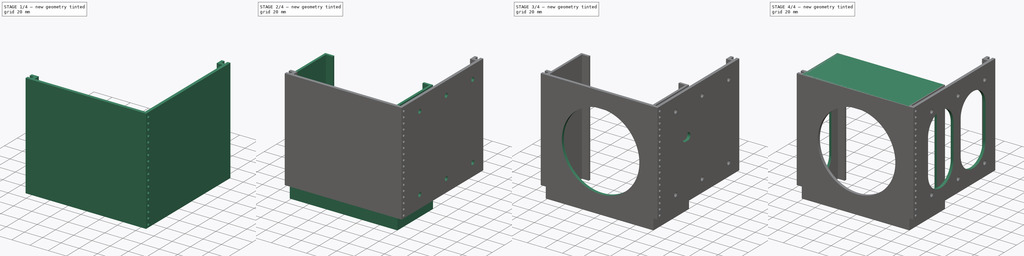
[diagram: build sequence overview — one tinted view per stage of 4, left to right]
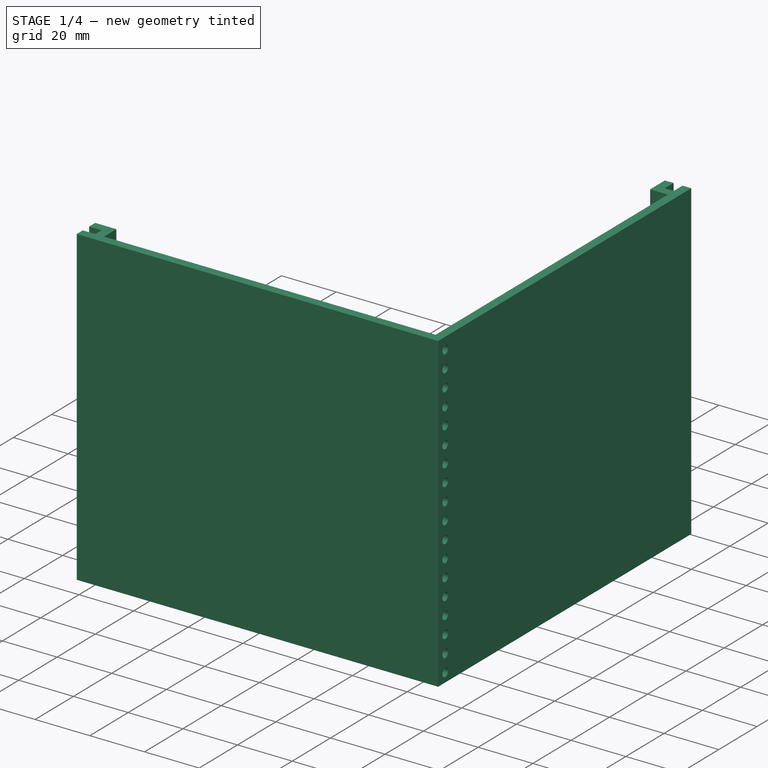
[diagram: stage 1 of 4 — iso view after this stage's code; geometry added in this stage tinted green]
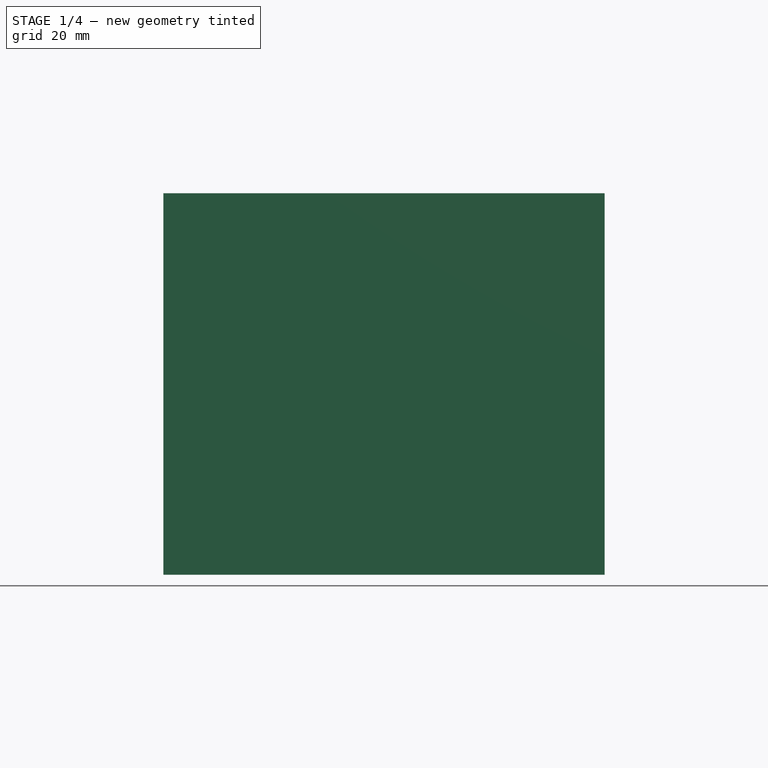
[diagram: stage 1 of 4 — front view after this stage's code; geometry added in this stage tinted green]
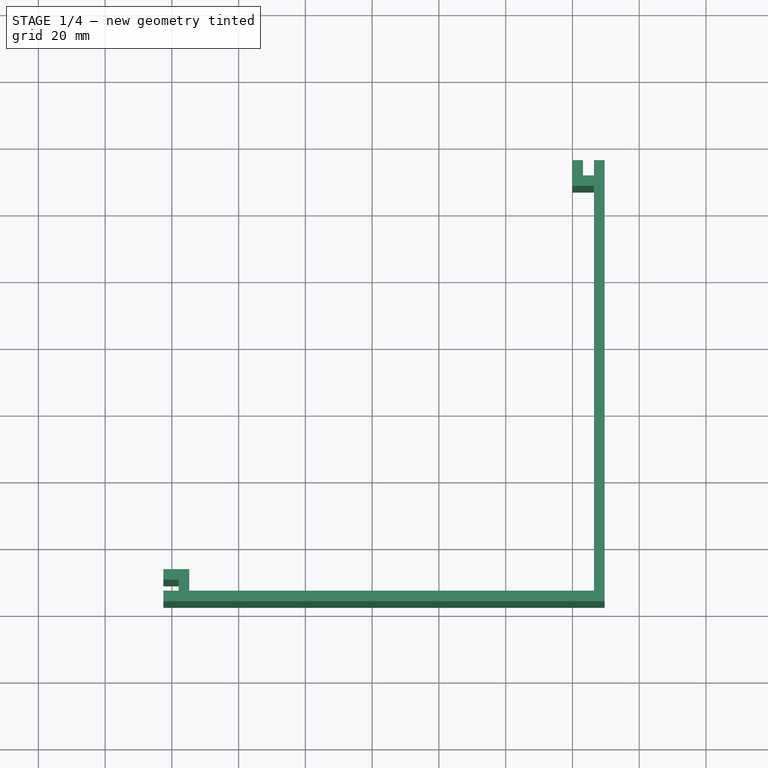
[diagram: stage 1 of 4 — top view after this stage's code; geometry added in this stage tinted green]
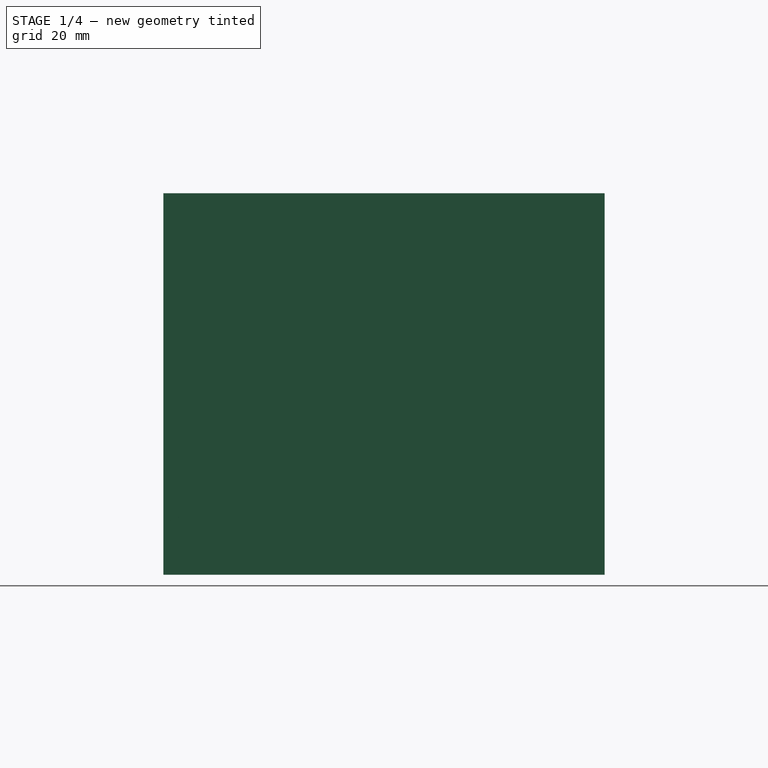
[diagram: stage 1 of 4 — right view after this stage's code; geometry added in this stage tinted green]
FCSTD DOCUMENT  (FreeCAD 0.16R6712 (Git))
Label: reworking contro
License: All rights reserved
LicenseURL: http://en.wikipedia.org/wiki/All_rights_reserved
objects: Sketcher::SketchObject×9, PartDesign::Pocket×6, PartDesign::Pad×3, PartDesign::LinearPattern×2
note: 29 computed .brp shape members not serialized (recipe doc carries the construction recipe); baked Part::Feature solids carry a one-line shape summary decoded from their .brp

FEATURE [Sketcher::SketchObject] Sketch
  sketch-geometry (18):
    g0: LineSegment StartX=-122.555 StartY=32.1333 StartZ=0 EndX=-122.555 EndY=28.9583 EndZ=0
    g1: LineSegment StartX=-122.555 StartY=28.9583 StartZ=0 EndX=-117.983 EndY=28.9583 EndZ=0
    g2: LineSegment StartX=-117.983 StartY=28.9583 StartZ=0 EndX=-117.983 EndY=25.6563 EndZ=0
    g3: LineSegment StartX=-117.983 StartY=25.6563 StartZ=0 EndX=-122.555 EndY=25.6563 EndZ=0
    g4: LineSegment StartX=-122.555 StartY=25.6563 StartZ=0 EndX=-122.555 EndY=22.4813 EndZ=0
    g5: LineSegment StartX=-122.555 StartY=22.4813 StartZ=0 EndX=9.652 EndY=22.4813 EndZ=0
    g6: LineSegment StartX=9.652 StartY=22.4813 StartZ=0 EndX=9.652 EndY=154.688 EndZ=0
    g7: LineSegment StartX=9.652 StartY=154.688 StartZ=0 EndX=6.477 EndY=154.688 EndZ=0
    g8: LineSegment StartX=6.477 StartY=154.688 StartZ=0 EndX=6.477 EndY=150.116 EndZ=0
    g9: LineSegment StartX=6.477 StartY=150.116 StartZ=0 EndX=3.175 EndY=150.116 EndZ=0
    g10: LineSegment StartX=3.175 StartY=150.116 StartZ=0 EndX=3.175 EndY=154.688 EndZ=0
    g11: LineSegment StartX=3.175 StartY=154.688 StartZ=0 EndX=0 EndY=154.688 EndZ=0
    g12: LineSegment StartX=0 StartY=154.688 StartZ=0 EndX=0 EndY=146.941 EndZ=0
    g13: LineSegment StartX=0 StartY=146.941 StartZ=0 EndX=6.477 EndY=146.941 EndZ=0
    g14: LineSegment StartX=6.477 StartY=146.941 StartZ=0 EndX=6.477 EndY=25.6563 EndZ=0
    g15: LineSegment StartX=6.477 StartY=25.6563 StartZ=0 EndX=-114.808 EndY=25.6563 EndZ=0
    g16: LineSegment StartX=-114.808 StartY=25.6563 StartZ=0 EndX=-114.808 EndY=32.1333 EndZ=0
    g17: LineSegment StartX=-114.808 StartY=32.1333 StartZ=0 EndX=-122.555 EndY=32.1333 EndZ=0
  constraints (53):
    c: Coincident(g0,g1)
    c: Coincident(g1,g2)
    c: Coincident(g2,g3)
    c: Coincident(g3,g4)
    c: Coincident(g4,g5)
    c: Horizontal(g5)
    c: Coincident(g5,g6)
    c: Vertical(g6)
    c: Coincident(g6,g7)
    c: Coincident(g7,g8)
    c: Vertical(g8)
    c: Coincident(g8,g9)
    c: Coincident(g9,g10)
    c: Coincident(g10,g11)
    c: PointOnObject(g11,g-2)
    c: Coincident(g11,g12)
    c: PointOnObject(g12,g-2)
    c: Coincident(g12,g13)
    c: Coincident(g13,g14)
    c: Vertical(g14)
    c: Coincident(g14,g15)
    c: Horizontal(g15)
    c: Coincident(g15,g16)
    c: Vertical(g16)
    c: Coincident(g16,g17)
    c: Coincident(g17,g0)
    c: Vertical(g2)
    c: Vertical(g0)
    c: Vertical(g4)
    c: Vertical(g10)
    c: Horizontal(g1)
    c: Horizontal(g17)
    c: Horizontal(g3)
    c: Horizontal(g13)
    c: DistanceY(g2,g2) = 3.302
    c: DistanceY(g0,g0) = 3.175
    c: DistanceY(g4,g4) = 3.175
    c: DistanceY(g4,g15) = 3.175
    c: DistanceX(g1,g1) = 4.572
    c: DistanceX(g2,g15) = 3.175
    c: DistanceX(g3,g2) = 4.572
    c: DistanceX(g2,g14) = 124.46
    c: DistanceX(g14,g5) = 3.175
    c: Horizontal(g7)
    c: Horizontal(g11)
    c: Horizontal(g9)
    c: DistanceX(g7,g7) = 3.175
    c: DistanceX(g11,g11) = 3.175
    c: DistanceX(g9,g9) = 3.302
    c: DistanceY(g8,g7) = 4.572
    c: DistanceY(g10,g10) = 4.572
    c: DistanceY(g13,g8) = 3.175
    c: DistanceY(g14,g8) = 124.46
FEATURE [PartDesign::Pad] Pad
  Length = 114.3
  Length2 = 100
  Sketch = -> Sketch
  Type = 0
FEATURE [Sketcher::SketchObject] Sketch002
  Placement = pos=(9.652,0,0) rot=(0.57735,0.57735,0.57735;2.0944rad)
  Support = -> Pad [Face7]
  sketch-geometry (1):
    g0: Circle CenterX=26.1806 CenterY=110.003 CenterZ=0 NormalX=0 NormalY=0 NormalZ=1 Radius=1.49513
FEATURE [PartDesign::Pocket] Pocket
  Length = 3.175
  Sketch = -> Sketch002
  Type = 0
FEATURE [PartDesign::LinearPattern] LinearPattern
  Direction = -> Sketch002 [V_Axis]
  Length = 106.68
  Occurrences = 18
  Originals = -> [Pocket]
  Reversed = true
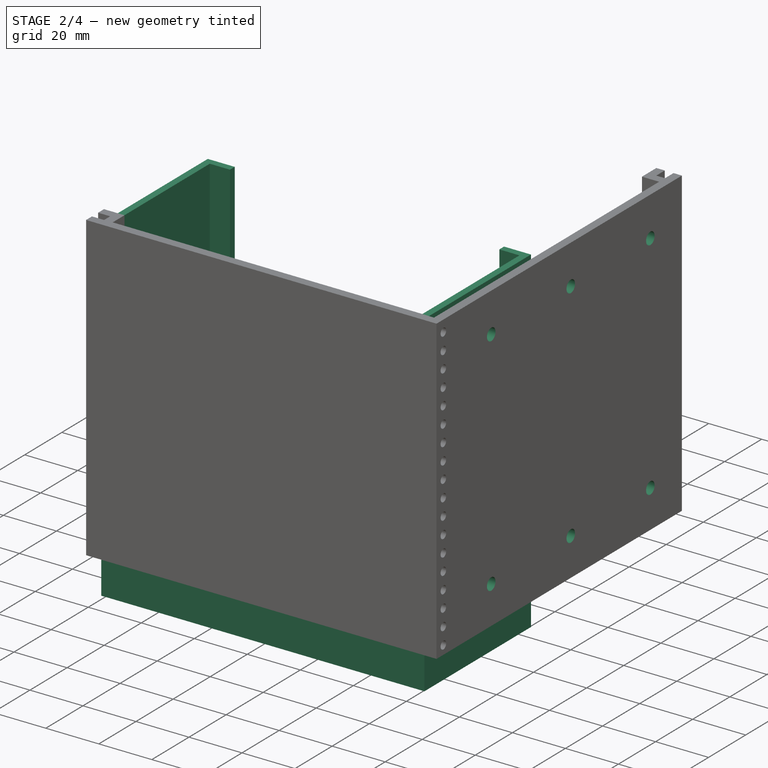
[diagram: stage 2 of 4 — iso view after this stage's code; geometry added in this stage tinted green]
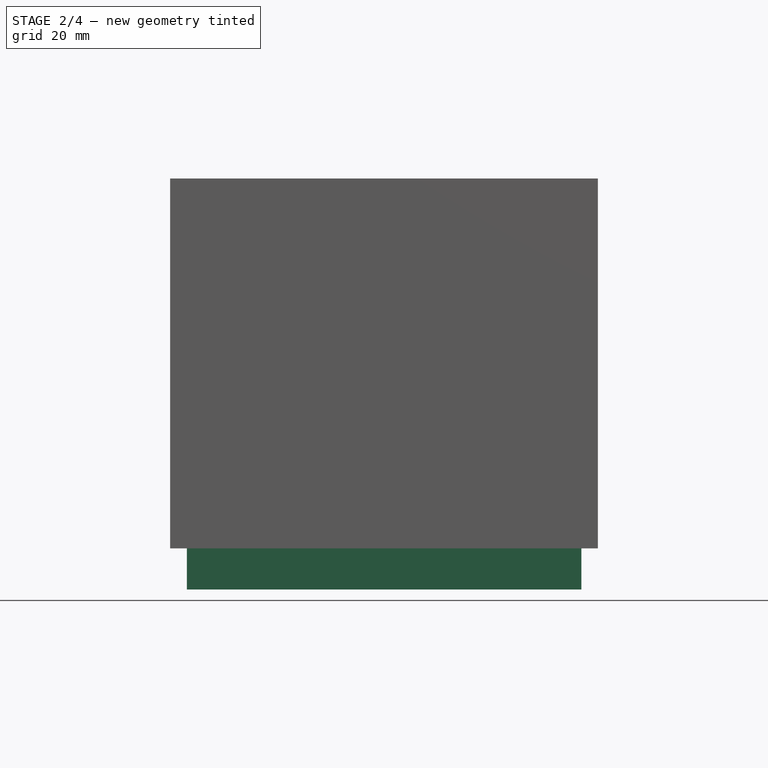
[diagram: stage 2 of 4 — front view after this stage's code; geometry added in this stage tinted green]
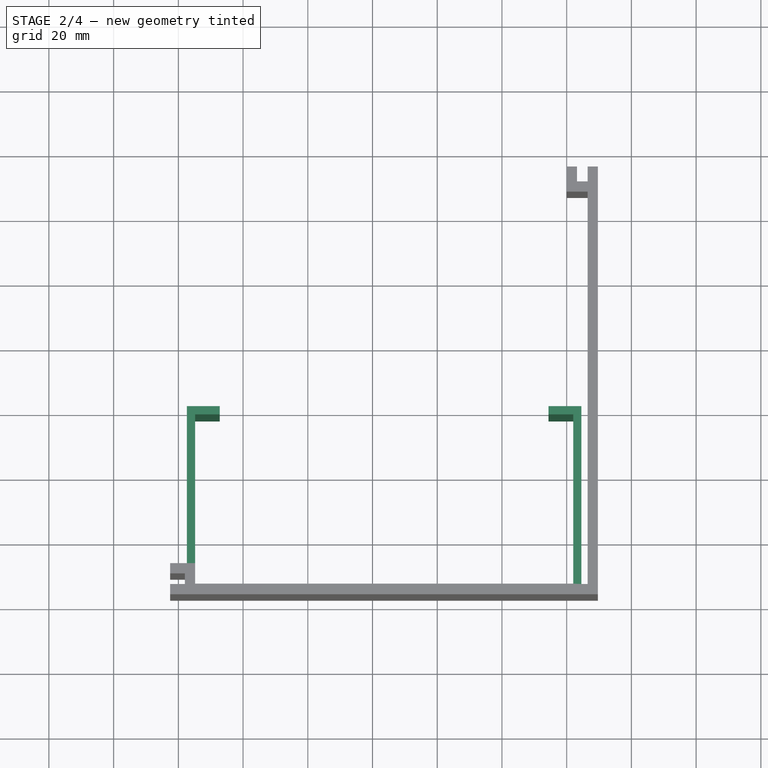
[diagram: stage 2 of 4 — top view after this stage's code; geometry added in this stage tinted green]
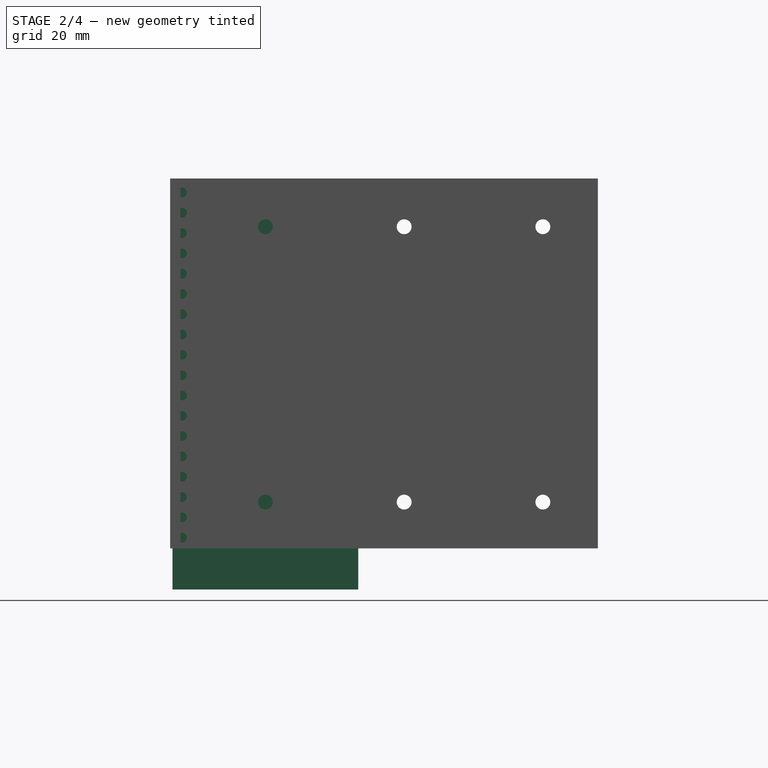
[diagram: stage 2 of 4 — right view after this stage's code; geometry added in this stage tinted green]
FEATURE [Sketcher::SketchObject] Sketch003
  Placement = pos=(6.477,0,0) rot=(0.57735,-0.57735,-0.57735;2.0944rad)
  Support = -> LinearPattern [Face19]
  sketch-geometry (2):
    g0: Circle CenterX=-137.674 CenterY=99.3967 CenterZ=0 NormalX=0 NormalY=0 NormalZ=1 Radius=2.29514
    g1: Circle CenterX=-137.674 CenterY=14.3067 CenterZ=0 NormalX=0 NormalY=0 NormalZ=1 Radius=2.29514
  constraints (4):
    c: DistanceX(g1,g0) = 0
    c: DistanceY(g1,g0) = 85.09
    c: Radius(g0) = 2.29514
    c: Equal(g0,g1)
FEATURE [PartDesign::Pocket] Pocket001
  Length = 4.99999
  Sketch = -> Sketch003
  Type = 0
FEATURE [PartDesign::LinearPattern] LinearPattern001
  Direction = -> Sketch003 [H_Axis]
  Length = 85.725
  Occurrences = 3
  Originals = -> [Pocket001]
FEATURE [Sketcher::SketchObject] Sketch006
  Placement = pos=(0,0,114.3) rot=(0,0,1;0rad)
  Support = -> LinearPattern001 [Face5]
  sketch-geometry (12):
    g0: LineSegment StartX=-114.823 StartY=25.7738 StartZ=0 EndX=2.01728 EndY=25.7738 EndZ=0
    g1: LineSegment StartX=2.01728 StartY=25.7738 StartZ=0 EndX=2.01728 EndY=78.0978 EndZ=0
    g2: LineSegment StartX=2.01728 StartY=78.0978 StartZ=0 EndX=-5.60272 EndY=78.0978 EndZ=0
    g3: LineSegment StartX=-5.60272 StartY=78.0978 StartZ=0 EndX=-5.60272 EndY=80.6378 EndZ=0
    g4: LineSegment StartX=-5.60272 StartY=80.6378 StartZ=0 EndX=4.55728 EndY=80.6378 EndZ=0
    g5: LineSegment StartX=4.55728 StartY=80.6378 StartZ=0 EndX=4.55728 EndY=23.2338 EndZ=0
    g6: LineSegment StartX=4.55728 StartY=23.2338 StartZ=0 EndX=-117.363 EndY=23.2338 EndZ=0
    g7: LineSegment StartX=-117.363 StartY=23.2338 StartZ=0 EndX=-117.363 EndY=80.6378 EndZ=0
    g8: LineSegment StartX=-117.363 StartY=80.6378 StartZ=0 EndX=-107.203 EndY=80.6378 EndZ=0
    g9: LineSegment StartX=-107.203 StartY=80.6378 StartZ=0 EndX=-107.203 EndY=78.0978 EndZ=0
    g10: LineSegment StartX=-107.203 StartY=78.0978 StartZ=0 EndX=-114.823 EndY=78.0978 EndZ=0
    g11: LineSegment StartX=-114.823 StartY=78.0978 StartZ=0 EndX=-114.823 EndY=25.7738 EndZ=0
  constraints (34):
    c: Horizontal(g0)
    c: Coincident(g0,g1)
    c: Vertical(g1)
    c: Coincident(g1,g2)
    c: Coincident(g2,g3)
    c: Coincident(g3,g4)
    c: Horizontal(g4)
    c: Coincident(g4,g5)
    c: Vertical(g5)
    c: Coincident(g5,g6)
    c: Horizontal(g6)
    c: Coincident(g6,g7)
    c: Vertical(g7)
    c: Coincident(g7,g8)
    c: Horizontal(g8)
    c: Coincident(g8,g9)
    c: Vertical(g9)
    c: Coincident(g9,g10)
    c: Horizontal(g10)
    c: Coincident(g10,g11)
    c: Coincident(g11,g0)
    c: Vertical(g11)
    c: DistanceX(g0,g0) = 116.84
    c: DistanceX(g7,g10) = 2.54
    c: DistanceX(g0,g5) = 2.54
    c: Horizontal(g2)
    c: Vertical(g3)
    c: DistanceX(g2,g2) = 7.62
    c: DistanceX(g10,g10) = 7.62
    c: DistanceY(g9,g9) = 2.54
    c: DistanceY(g3,g3) = 2.54
    c: DistanceY(g6,g0) = 2.54
    c: DistanceY(g11,g11) = 52.324
    c: Equal(g11,g1)
FEATURE [PartDesign::Pad] Pad001
  Length = 127
  Length2 = 100
  Reversed = true
  Sketch = -> Sketch006
  Type = 0
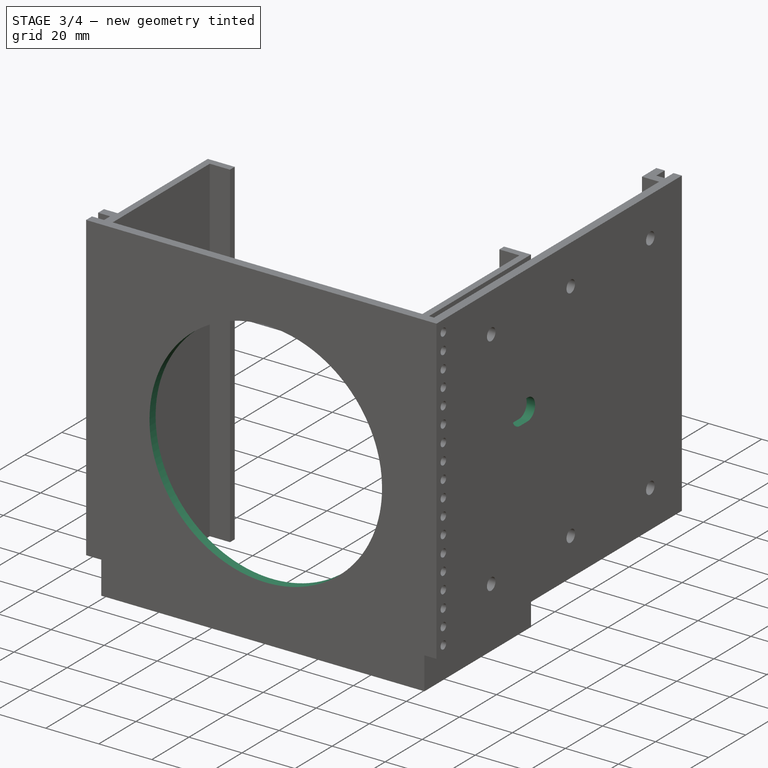
[diagram: stage 3 of 4 — iso view after this stage's code; geometry added in this stage tinted green]
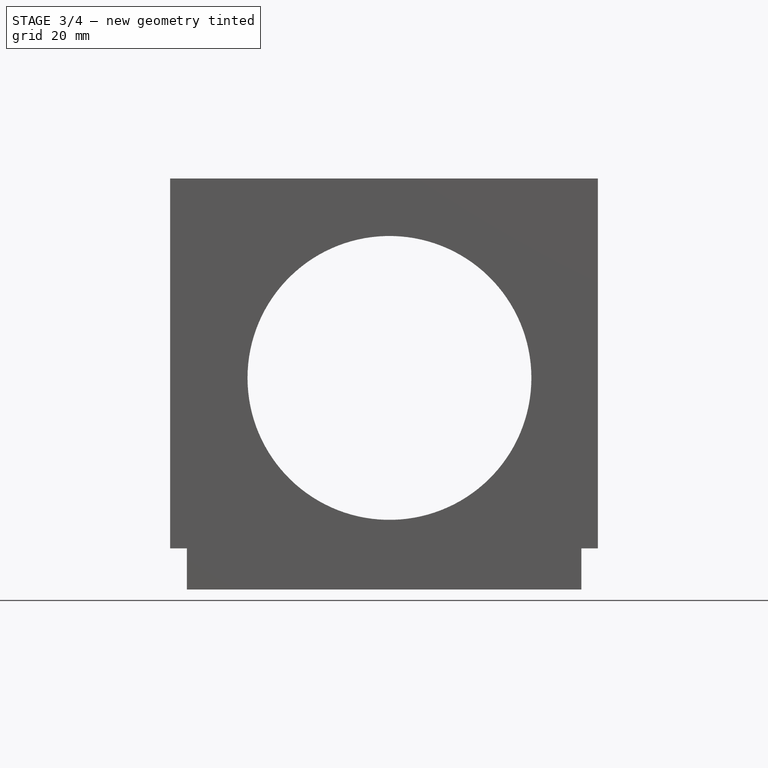
[diagram: stage 3 of 4 — front view after this stage's code; geometry added in this stage tinted green]
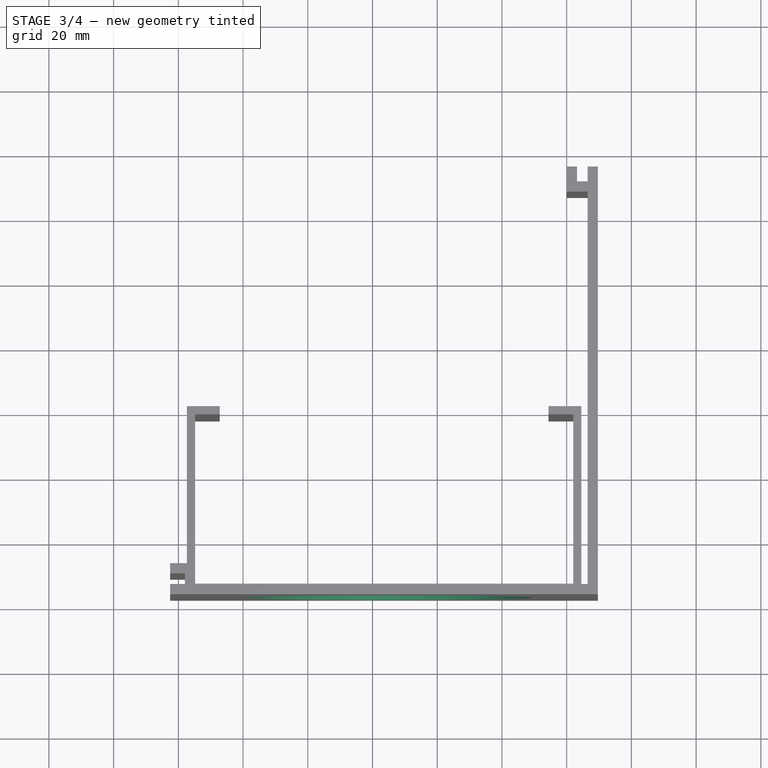
[diagram: stage 3 of 4 — top view after this stage's code; geometry added in this stage tinted green]
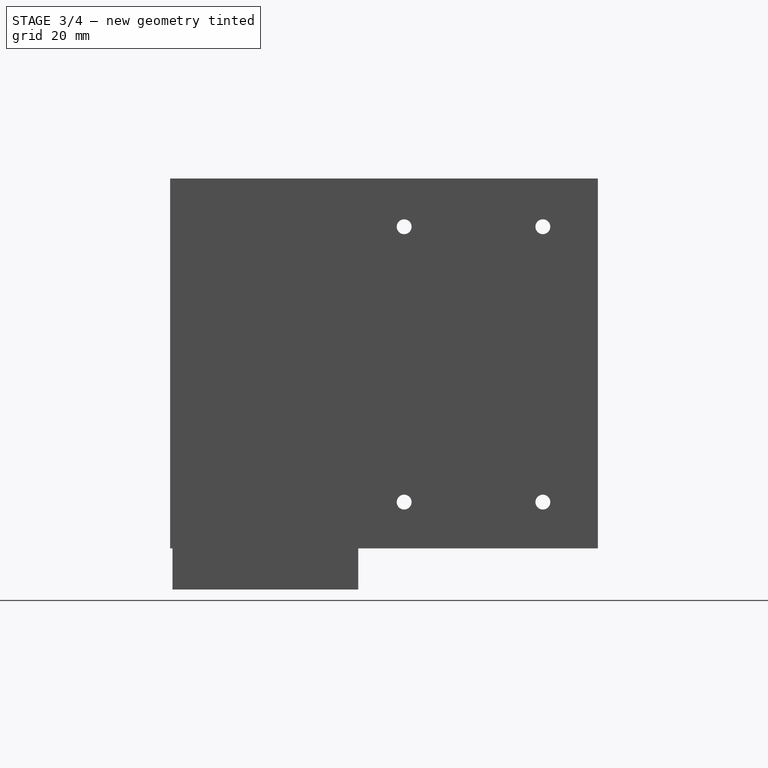
[diagram: stage 3 of 4 — right view after this stage's code; geometry added in this stage tinted green]
FEATURE [Sketcher::SketchObject] Sketch009
  Placement = pos=(0,25.7738,0) rot=(0,0.707107,0.707107;3.14159rad)
  Support = -> Pad001 [Face2]
  sketch-geometry (1):
    g0: Circle CenterX=54.7674 CenterY=52.6804 CenterZ=0 NormalX=0 NormalY=0 NormalZ=1 Radius=43.8607
FEATURE [PartDesign::Pocket] Pocket002
  Length = 4.99999
  Sketch = -> Sketch009
  Type = 0
FEATURE [Sketcher::SketchObject] Sketch010
  Placement = pos=(9.652,0,0) rot=(0.57735,0.57735,0.57735;2.0944rad)
  Support = -> Pocket002 [Face28]
  sketch-geometry (4):
    g0: ArcOfCircle CenterX=71.5185 CenterY=66.3249 CenterZ=0 NormalX=0 NormalY=0 NormalZ=1 Radius=4.06776 StartAngle=4.71239 EndAngle=7.85398
    g1: ArcOfCircle CenterX=67.4376 CenterY=66.3249 CenterZ=0 NormalX=0 NormalY=0 NormalZ=1 Radius=4.06776 StartAngle=1.5708 EndAngle=4.71239
    g2: LineSegment StartX=71.5185 StartY=70.3926 StartZ=0 EndX=67.4376 EndY=70.3926 EndZ=0
    g3: LineSegment StartX=71.5185 StartY=62.2571 StartZ=0 EndX=67.4376 EndY=62.2571 EndZ=0
  constraints (6):
    c: Tangent(g0,g3) = 1.5708
    c: Tangent(g0,g2) = -1.5708
    c: Tangent(g2,g1) = -1.5708
    c: Tangent(g3,g1) = 1.5708
    c: Horizontal(g2)
    c: Equal(g0,g1)
FEATURE [PartDesign::Pocket] Pocket003
  Length = 4.99999
  Sketch = -> Sketch010
  Type = 0
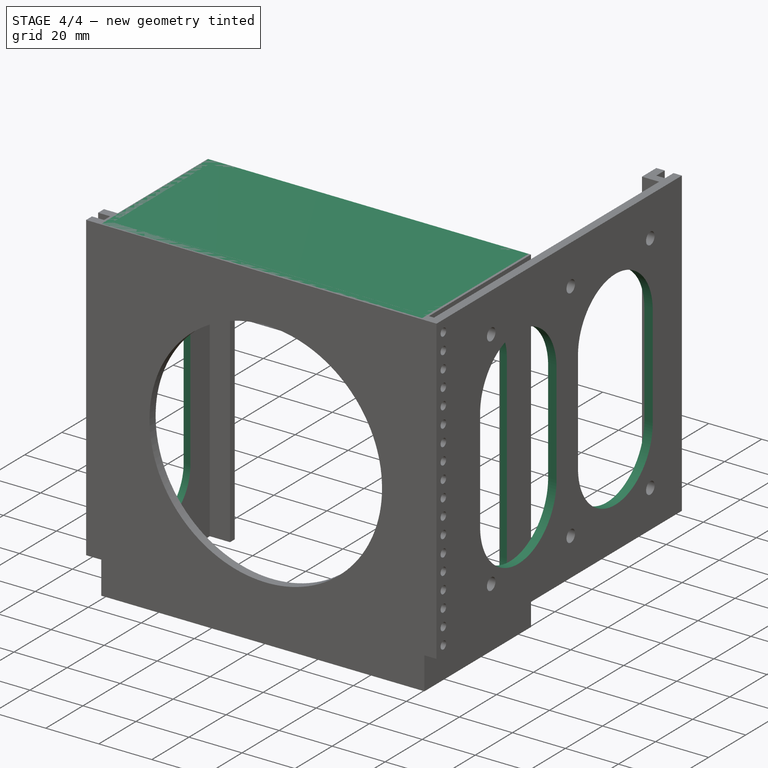
[diagram: stage 4 of 4 — iso view after this stage's code; geometry added in this stage tinted green]
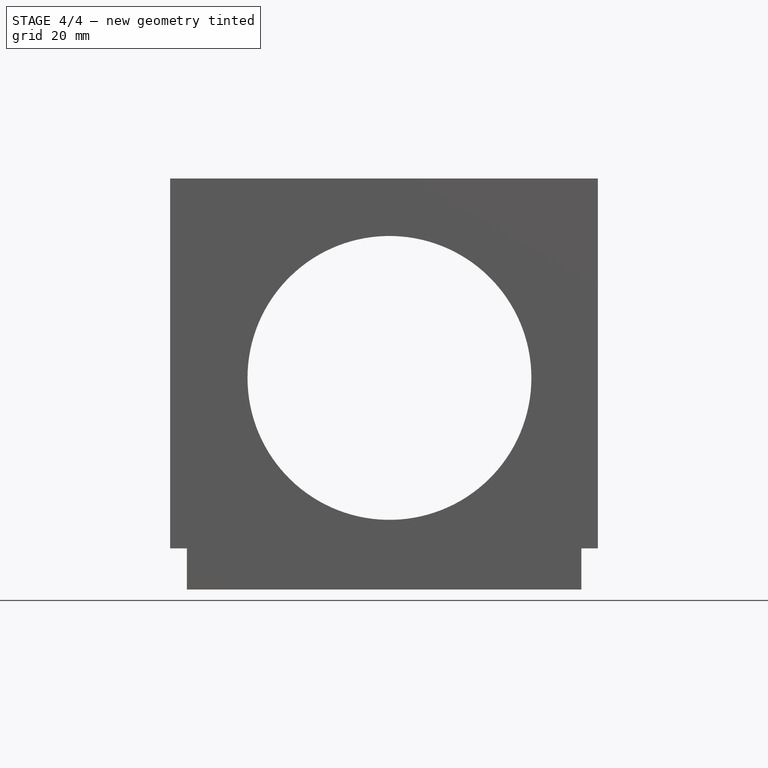
[diagram: stage 4 of 4 — front view after this stage's code; geometry added in this stage tinted green]
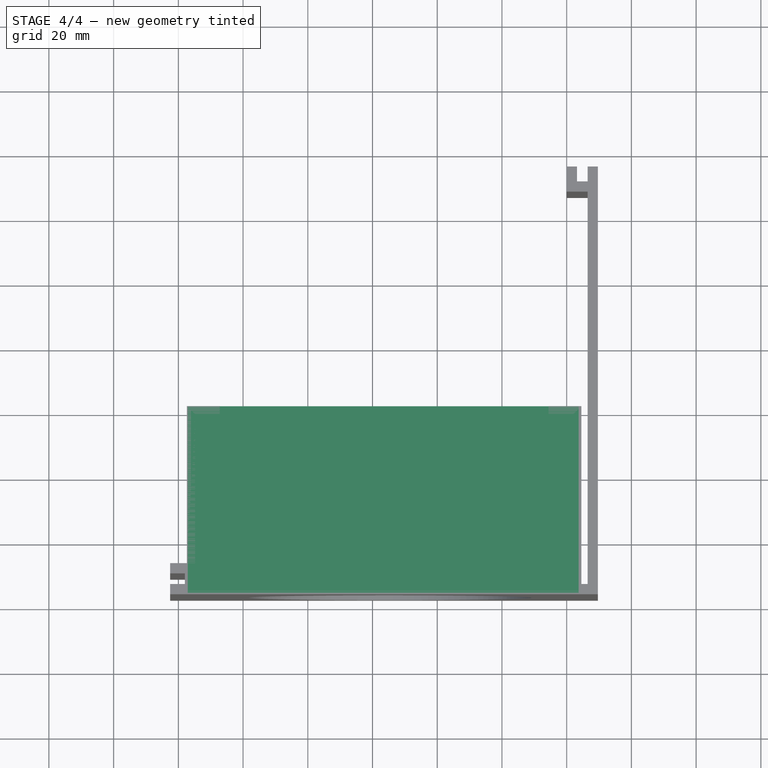
[diagram: stage 4 of 4 — top view after this stage's code; geometry added in this stage tinted green]
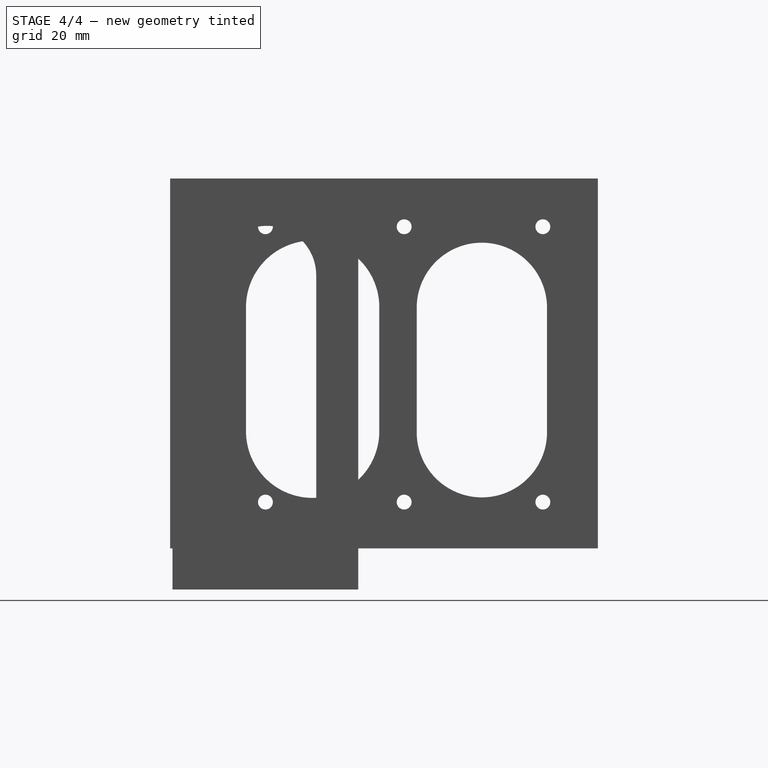
[diagram: stage 4 of 4 — right view after this stage's code; geometry added in this stage tinted green]
FEATURE [Sketcher::SketchObject] Sketch008
  Placement = pos=(0,0,114.3) rot=(0,0,1;0rad)
  sketch-geometry (4):
    g0: LineSegment StartX=-117.088 StartY=80.6124 StartZ=0 EndX=3.672 EndY=80.6124 EndZ=0
    g1: LineSegment StartX=3.672 StartY=80.6124 StartZ=0 EndX=3.672 EndY=22.9759 EndZ=0
    g2: LineSegment StartX=3.672 StartY=22.9759 StartZ=0 EndX=-117.088 EndY=22.9759 EndZ=0
    g3: LineSegment StartX=-117.088 StartY=22.9759 StartZ=0 EndX=-117.088 EndY=80.6124 EndZ=0
  constraints (8):
    c: Coincident(g0,g1)
    c: Coincident(g1,g2)
    c: Coincident(g2,g3)
    c: Coincident(g3,g0)
    c: Horizontal(g0)
    c: Horizontal(g2)
    c: Vertical(g1)
    c: Vertical(g3)
FEATURE [PartDesign::Pad] Pad002
  Length = 3.175
  Length2 = 100
  Placement = pos=(0,0,114.3) rot=(0,0,1;0rad)
  Reversed = true
  Sketch = -> Sketch008
  Type = 0
FEATURE [Sketcher::SketchObject] Sketch011
  Placement = pos=(-117.363,0,0) rot=(0.57735,-0.57735,-0.57735;2.0944rad)
  Support = -> Pocket003 [Face15]
  sketch-geometry (4):
    g0: ArcOfCircle CenterX=-52.3918 CenterY=84.4341 CenterZ=0 NormalX=0 NormalY=0 NormalZ=1 Radius=15.2416 StartAngle=0 EndAngle=3.14159
    g1: ArcOfCircle CenterX=-52.3918 CenterY=15.4841 CenterZ=0 NormalX=0 NormalY=0 NormalZ=1 Radius=15.2416 StartAngle=3.14159 EndAngle=6.28319
    g2: LineSegment StartX=-67.6333 StartY=84.4341 StartZ=0 EndX=-67.6333 EndY=15.4841 EndZ=0
    g3: LineSegment StartX=-37.1502 StartY=84.4341 StartZ=0 EndX=-37.1502 EndY=15.4841 EndZ=0
  constraints (6):
    c: Tangent(g0,g3) = 1.5708
    c: Tangent(g0,g2) = -1.5708
    c: Tangent(g2,g1) = -1.5708
    c: Tangent(g3,g1) = 1.5708
    c: Vertical(g2)
    c: Equal(g0,g1)
FEATURE [PartDesign::Pocket] Pocket004
  Length = 121.92
  Sketch = -> Sketch011
  Type = 0
FEATURE [Sketcher::SketchObject] Sketch012
  Placement = pos=(9.652,0,0) rot=(0.57735,0.57735,0.57735;2.0944rad)
  Support = -> Pocket004 [Face36]
  sketch-geometry (8):
    g0: ArcOfCircle CenterX=66.5355 CenterY=74.5244 CenterZ=0 NormalX=0 NormalY=0 NormalZ=1 Radius=20.5998 StartAngle=0 EndAngle=3.14159
    g1: ArcOfCircle CenterX=66.5355 CenterY=36.2013 CenterZ=0 NormalX=0 NormalY=0 NormalZ=1 Radius=20.5998 StartAngle=3.14159 EndAngle=6.28319
    g2: LineSegment StartX=45.9356 StartY=74.5244 StartZ=0 EndX=45.9356 EndY=36.2013 EndZ=0
    g3: LineSegment StartX=87.1353 StartY=74.5244 StartZ=0 EndX=87.1353 EndY=36.2013 EndZ=0
    g4: ArcOfCircle CenterX=118.827 CenterY=74.3263 CenterZ=0 NormalX=0 NormalY=0 NormalZ=1 Radius=20.14 StartAngle=0 EndAngle=3.14159
    g5: ArcOfCircle CenterX=118.827 CenterY=35.8997 CenterZ=0 NormalX=0 NormalY=0 NormalZ=1 Radius=20.14 StartAngle=3.14159 EndAngle=6.28319
    g6: LineSegment StartX=98.6874 StartY=74.3263 StartZ=0 EndX=98.6874 EndY=35.8997 EndZ=0
    g7: LineSegment StartX=138.967 StartY=74.3263 StartZ=0 EndX=138.967 EndY=35.8997 EndZ=0
  constraints (12):
    c: Tangent(g0,g3) = 1.5708
    c: Tangent(g0,g2) = -1.5708
    c: Tangent(g2,g1) = -1.5708
    c: Tangent(g3,g1) = 1.5708
    c: Vertical(g2)
    c: Equal(g0,g1)
    c: Tangent(g4,g7) = 1.5708
    c: Tangent(g4,g6) = -1.5708
    c: Tangent(g6,g5) = -1.5708
    c: Tangent(g7,g5) = 1.5708
    c: Vertical(g6)
    c: Equal(g4,g5)
FEATURE [PartDesign::Pocket] Pocket005
  Length = 4.99999
  Sketch = -> Sketch012
  Type = 0
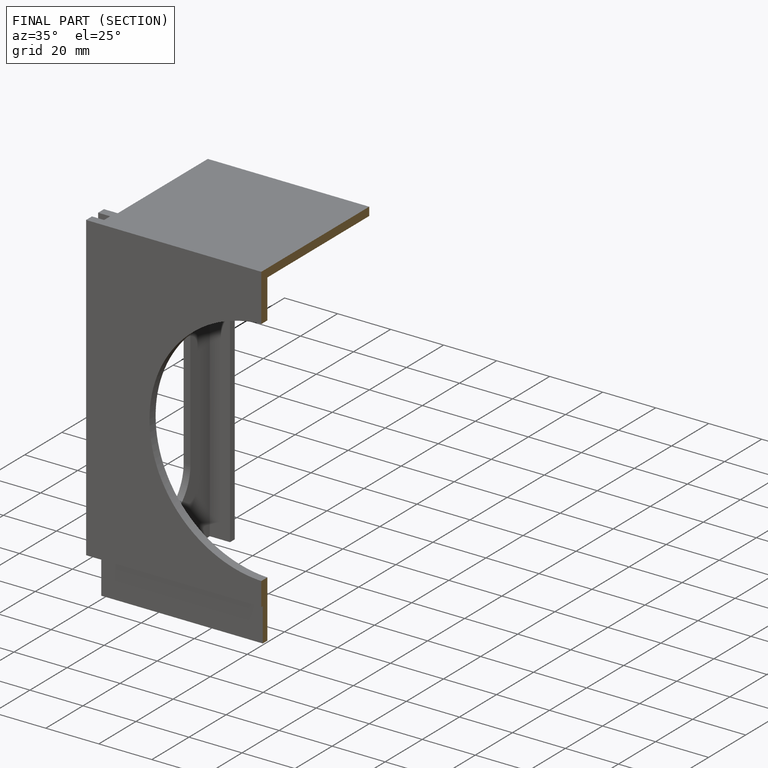
[diagram: finished part — half-section view (interior)]
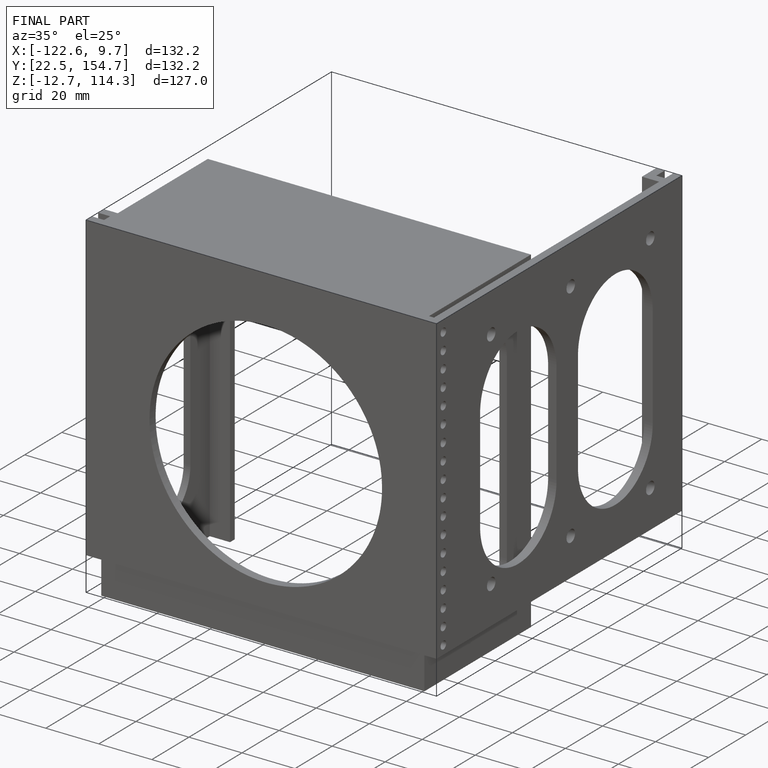
[diagram: finished part — iso view with bounding-box wireframe]
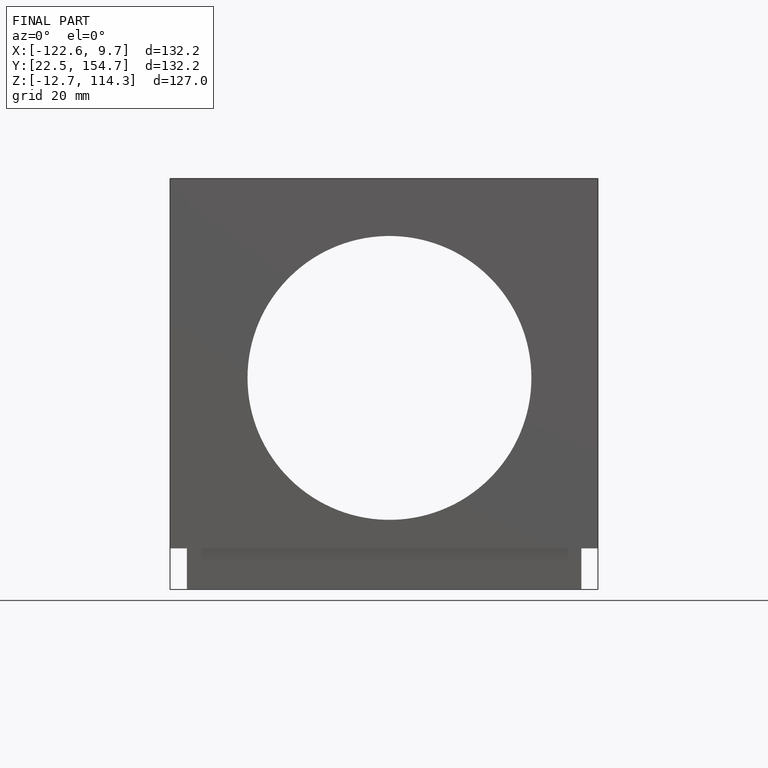
[diagram: finished part — front view with bounding-box wireframe]
